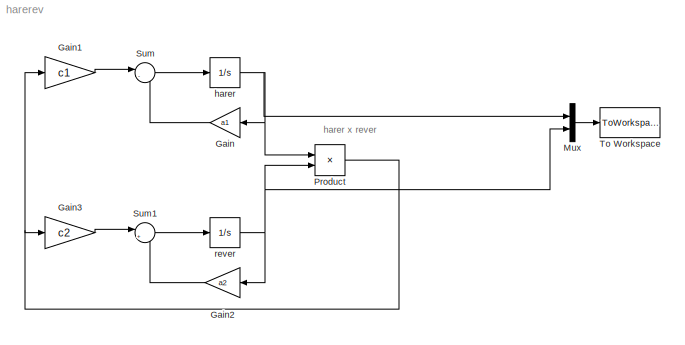
MODEL harerev
KIND model
BLOCK [Gain] Gain
  Gain = a1
  SID = 2
BLOCK [Gain] Gain1
  Gain = c1
  SID = 3
BLOCK [Gain] Gain2
  Gain = a2
  SID = 4
BLOCK [Gain] Gain3
  Gain = c2
  SID = 5
BLOCK [Mux] Mux
  DisplayOption = bar
  Inputs = 2
  Ports = [2, 1]
  SID = 22
BLOCK [Product] Product
  Ports = [2, 1]
  SID = 8
BLOCK [Sum] Sum
  IconShape = round
  InputSameDT = off
  Inputs = |-+
  OutDataTypeStr = Inherit: Inherit via internal rule
  Ports = [2, 1]
  SID = 18
  SaturateOnIntegerOverflow = off
BLOCK [Sum] Sum1
  IconShape = round
  InputSameDT = off
  Inputs = |+-
  OutDataTypeStr = Inherit: Inherit via internal rule
  Ports = [2, 1]
  SID = 19
  SaturateOnIntegerOverflow = off
BLOCK [ToWorkspace] To Workspace
  FixptAsFi = on
  MaxDataPoints = inf
  Ports = [1]
  SID = 21
  SampleTime = -1
  Save2DSignal = 3-D array (concatenate along third dimension)
  SaveFormat = Timeseries
  VariableName = ulinmod
BLOCK [Integrator] harer
  InitialCondition = start_harer
  Ports = [1, 1]
  SID = 15
BLOCK [Integrator] rever
  InitialCondition = start_rever
  Ports = [1, 1]
  SID = 17
ANNOTATION (root): harer x rever
LINE Gain1:1 -> Sum:1
LINE Gain2:1 -> Sum1:2
LINE Gain3:1 -> Sum1:1
LINE Gain:1 -> Sum:2
LINE Mux:1 -> To Workspace:1
NET Product:1 -> Gain1:1, Gain3:1
LINE Sum1:1 -> rever:1
LINE Sum:1 -> harer:1
NET harer:1 -> Gain:1, Mux:1, Product:1
NET rever:1 -> Gain2:1, Mux:2, Product:2
note: NET lines group one-source signal fan-out (src -> all destinations, sorted); 1:1 wires keep LINE
